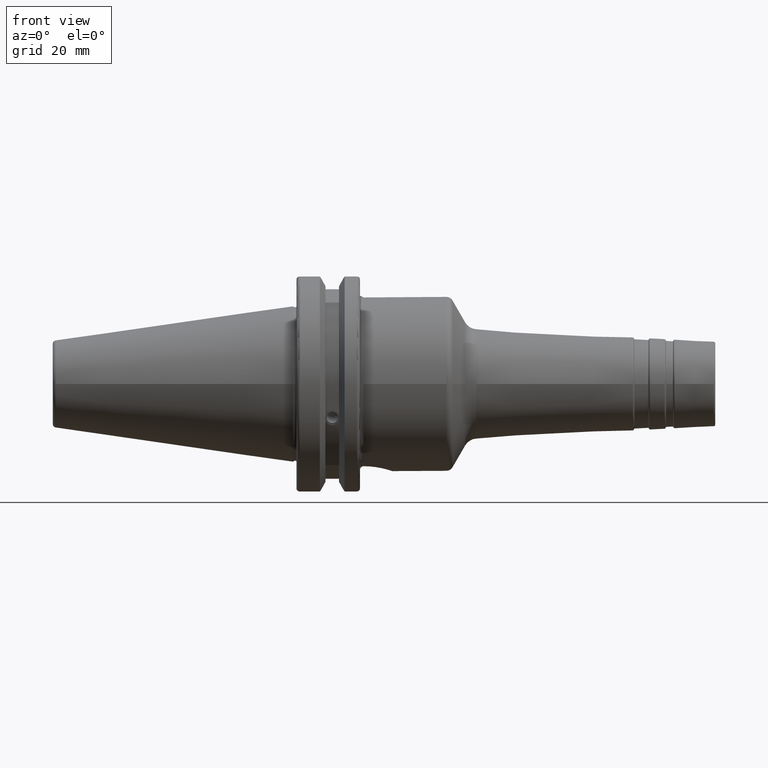
[diagram: clean part render]
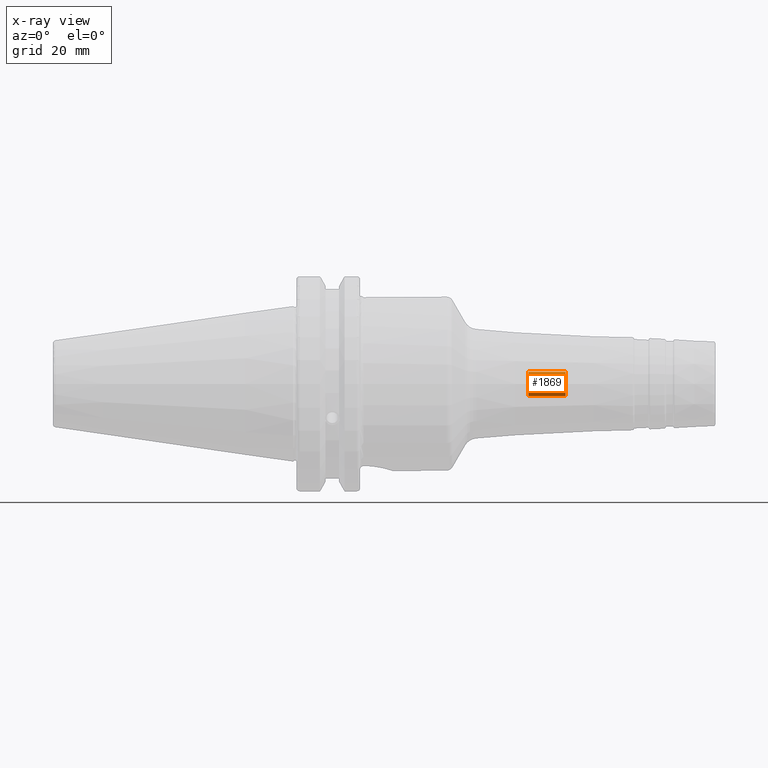
[diagram: x-ray — body ghosted, one internal face saturated and labeled with its STEP entity id]
A machine part, front view, then the same camera in x-ray: the body is ghosted and one INTERNAL B-rep face — a face not visible from any outside direction — is saturated and labeled: STEP entity #1869.
In plain terms, the highlighted cylindrical surface (bore or boss wall) has radius 3.4585 mm, axis along (1, 0, 0).
Its self-contained STEP definition (entity closure, byte-faithful):
#53=CYLINDRICAL_SURFACE('',#2061,3.4585);
#184=LINE('',#3048,#279);
#279=VECTOR('',#2425,3.4585);
#408=FACE_OUTER_BOUND('',#517,.T.);
#517=EDGE_LOOP('',(#1383,#1384,#1385,#1386,#1387));
#674=CIRCLE('',#2062,3.4585);
#675=CIRCLE('',#2063,3.4585);
#676=CIRCLE('',#2064,3.4585);
#798=VERTEX_POINT('',#3045);
#799=VERTEX_POINT('',#3047);
#800=VERTEX_POINT('',#3049);
#1018=EDGE_CURVE('',#798,#798,#674,.T.);
#1019=EDGE_CURVE('',#798,#799,#184,.T.);
#1020=EDGE_CURVE('',#800,#799,#675,.T.);
#1021=EDGE_CURVE('',#799,#800,#676,.T.);
#1383=ORIENTED_EDGE('',*,*,#1018,.F.);
#1384=ORIENTED_EDGE('',*,*,#1019,.T.);
#1385=ORIENTED_EDGE('',*,*,#1020,.F.);
#1386=ORIENTED_EDGE('',*,*,#1021,.F.);
#1387=ORIENTED_EDGE('',*,*,#1019,.F.);
#1869=ADVANCED_FACE('',(#408),#53,.F.);
#2061=AXIS2_PLACEMENT_3D('',#3044,#2421,#2422);
#2062=AXIS2_PLACEMENT_3D('',#3046,#2423,#2424);
#2063=AXIS2_PLACEMENT_3D('',#3050,#2426,#2427);
#2064=AXIS2_PLACEMENT_3D('',#3051,#2428,#2429);
#2421=DIRECTION('center_axis',(1.,0.,0.));
#2422=DIRECTION('ref_axis',(0.,0.,-1.));
#2423=DIRECTION('center_axis',(-1.,0.,0.));
#2424=DIRECTION('ref_axis',(0.,0.,-1.));
#2425=DIRECTION('',(-1.,0.,0.));
#2426=DIRECTION('center_axis',(1.,0.,0.));
#2427=DIRECTION('ref_axis',(0.,0.,-1.));
#2428=DIRECTION('center_axis',(1.,0.,0.));
#2429=DIRECTION('ref_axis',(0.,0.,-1.));
#3044=CARTESIAN_POINT('Origin',(-130.351659794618,0.,0.));
#3045=CARTESIAN_POINT('',(77.5,-4.23544095485112E-16,3.4585));
#3046=CARTESIAN_POINT('Origin',(77.5,0.,0.));
#3047=CARTESIAN_POINT('',(66.8757963347172,-4.23544095485112E-16,3.4585));
#3048=CARTESIAN_POINT('',(-130.351659794618,-4.23544095485112E-16,3.4585));
#3049=CARTESIAN_POINT('',(66.8757963347172,-4.23544095485112E-16,-3.4585));
#3050=CARTESIAN_POINT('Origin',(66.8757963347172,0.,0.));
#3051=CARTESIAN_POINT('Origin',(66.8757963347172,0.,0.));